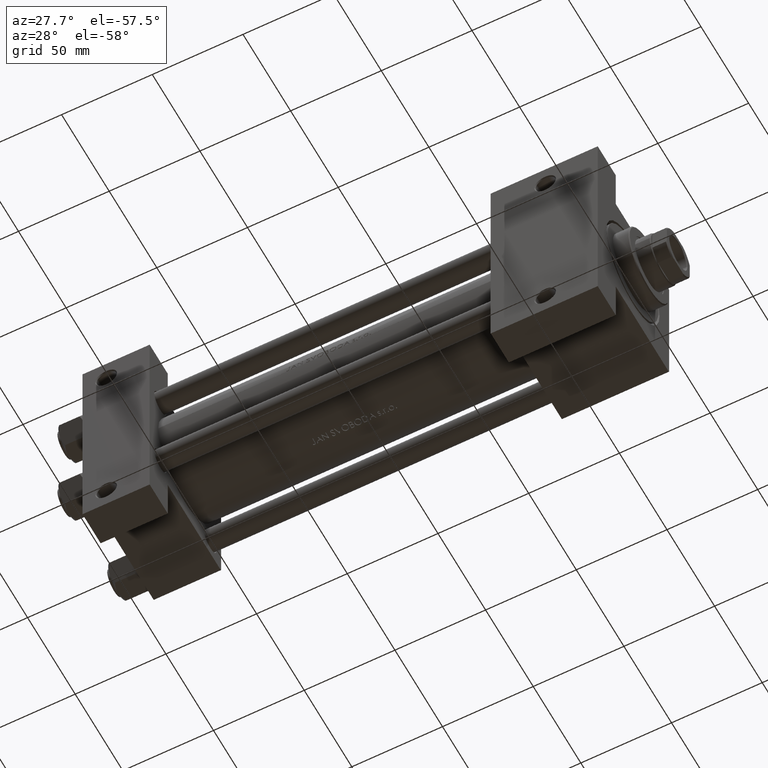
[diagram: clean part render]
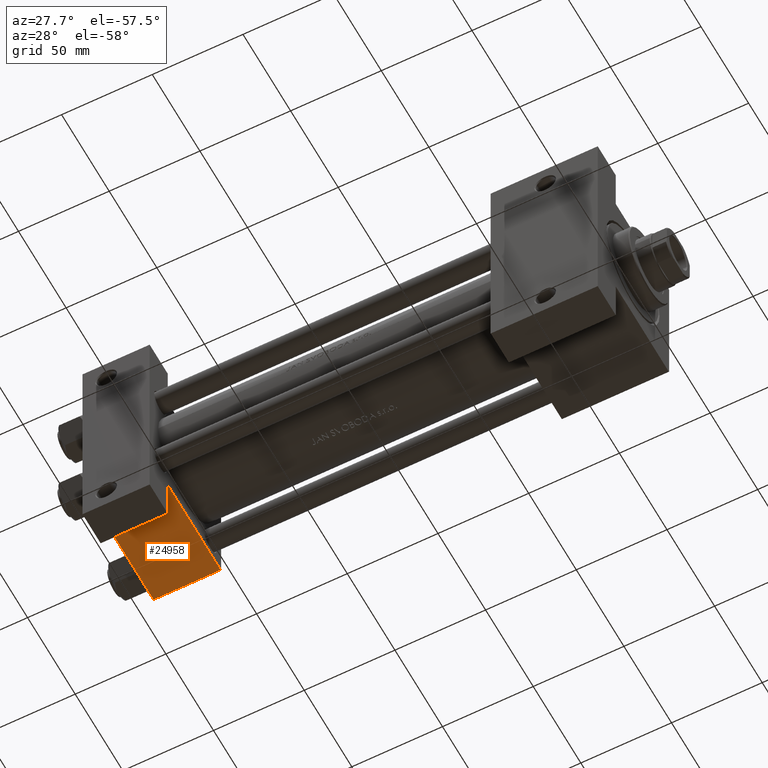
[diagram: same view with one face highlighted and labeled with its STEP entity id]
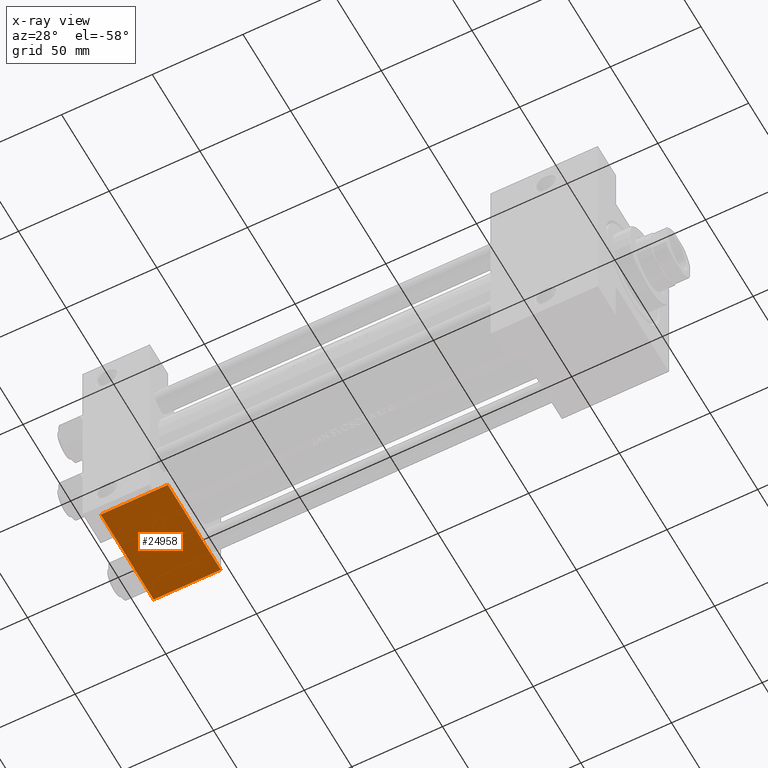
[diagram: x-ray of the same camera — body ghosted, the highlighted face saturated]
A machine part, auxiliary view. The second image highlights one B-rep face of the part: STEP entity #24958.
The next image is the same camera in x-ray: the body ghosted, the highlighted face saturated — about 0% of this face is hidden behind the body in this view.
In plain terms, the highlighted planar face has unit normal (0, 0, -1).
Its self-contained STEP definition (entity closure, byte-faithful):
#1623 = LINE ( 'NONE', #16195, #34650 ) ;
#2254 = LINE ( 'NONE', #6249, #44363 ) ;
#5094 = CARTESIAN_POINT ( 'NONE',  ( 37.00000000000000000, 37.49999999999999289, 37.50000000000000000 ) ) ;
#6249 = CARTESIAN_POINT ( 'NONE',  ( 37.00000000000000000, 37.49999999999999289, 37.50000000000000000 ) ) ;
#7602 = CARTESIAN_POINT ( 'NONE',  ( 0.000000000000000000, 37.49999999999999289, 37.00000000000000000 ) ) ;
#8760 = ORIENTED_EDGE ( 'NONE', *, *, #9103, .F. ) ;
#9103 = EDGE_CURVE ( 'NONE', #33074, #18352, #1623, .T. ) ;
#9156 = DIRECTION ( 'NONE',  ( 1.000000000000000000, -3.750753461571474945E-16, 0.000000000000000000 ) ) ;
#9288 = DIRECTION ( 'NONE',  ( 0.000000000000000000, 0.000000000000000000, -1.000000000000000000 ) ) ;
#9958 = VECTOR ( 'NONE', #24955, 1000.000000000000000 ) ;
#11731 = CARTESIAN_POINT ( 'NONE',  ( 37.00000000000000000, 37.49999999999999289, 37.00000000000000000 ) ) ;
#13907 = CARTESIAN_POINT ( 'NONE',  ( 37.00000000000000711, 37.50000000000000711, -18.50000000000000355 ) ) ;
#15914 = AXIS2_PLACEMENT_3D ( 'NONE', #5094, #16398, #47475 ) ;
#16154 = PLANE ( 'NONE',  #15914 ) ;
#16195 = CARTESIAN_POINT ( 'NONE',  ( 8.470280871287256020E-15, 37.50000000000002842, -18.49999999999999645 ) ) ;
#16398 = DIRECTION ( 'NONE',  ( -0.000000000000000000, 1.000000000000000000, 0.000000000000000000 ) ) ;
#18352 = VERTEX_POINT ( 'NONE', #13907 ) ;
#20001 = VERTEX_POINT ( 'NONE', #11731 ) ;
#21590 = DIRECTION ( 'NONE',  ( 0.000000000000000000, 0.000000000000000000, -1.000000000000000000 ) ) ;
#22195 = ORIENTED_EDGE ( 'NONE', *, *, #35779, .T. ) ;
#22693 = EDGE_LOOP ( 'NONE', ( #8760, #35597, #22195, #31667 ) ) ;
#24399 = FACE_OUTER_BOUND ( 'NONE', #22693, .T. ) ;
#24955 = DIRECTION ( 'NONE',  ( 1.000000000000000000, 0.000000000000000000, 0.000000000000000000 ) ) ;
#24958 = ADVANCED_FACE ( 'NONE', ( #24399 ), #16154, .T. ) ;
#29313 = CARTESIAN_POINT ( 'NONE',  ( 0.000000000000000000, 37.49999999999999289, -18.49999999999999645 ) ) ;
#31667 = ORIENTED_EDGE ( 'NONE', *, *, #33849, .T. ) ;
#31999 = CARTESIAN_POINT ( 'NONE',  ( 37.00000000000000000, 37.49999999999999289, 37.00000000000000000 ) ) ;
#32708 = VERTEX_POINT ( 'NONE', #7602 ) ;
#33074 = VERTEX_POINT ( 'NONE', #29313 ) ;
#33849 = EDGE_CURVE ( 'NONE', #20001, #18352, #2254, .T. ) ;
#34650 = VECTOR ( 'NONE', #9156, 1000.000000000000000 ) ;
#35597 = ORIENTED_EDGE ( 'NONE', *, *, #43095, .F. ) ;
#35688 = VECTOR ( 'NONE', #21590, 1000.000000000000000 ) ;
#35779 = EDGE_CURVE ( 'NONE', #32708, #20001, #36261, .T. ) ;
#36261 = LINE ( 'NONE', #31999, #9958 ) ;
#37145 = CARTESIAN_POINT ( 'NONE',  ( 0.000000000000000000, 37.49999999999999289, 37.50000000000000000 ) ) ;
#43095 = EDGE_CURVE ( 'NONE', #32708, #33074, #44172, .T. ) ;
#44172 = LINE ( 'NONE', #37145, #35688 ) ;
#44363 = VECTOR ( 'NONE', #9288, 1000.000000000000000 ) ;
#47475 = DIRECTION ( 'NONE',  ( 0.000000000000000000, -0.000000000000000000, 1.000000000000000000 ) ) ;